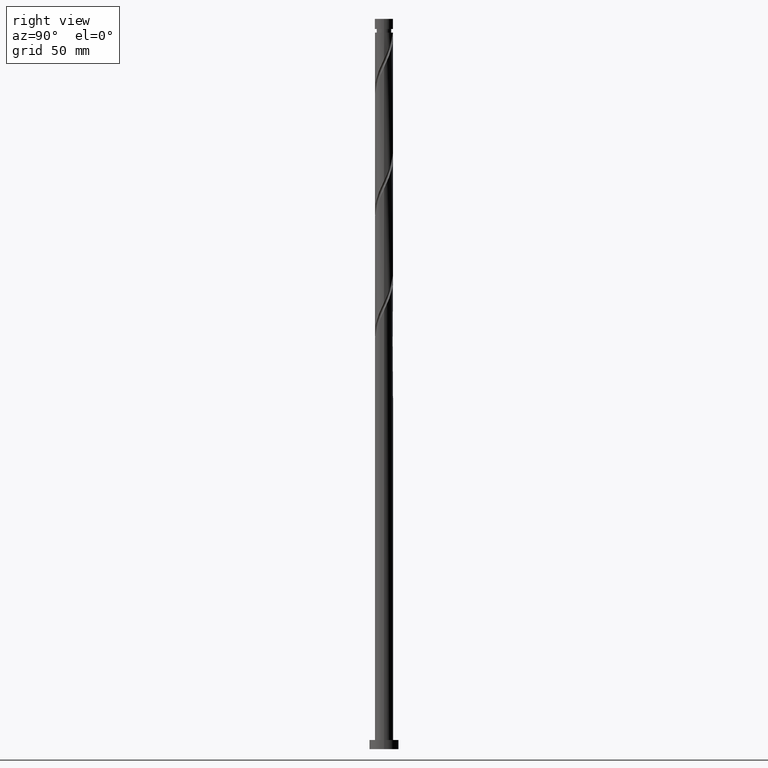
[diagram: clean part render]
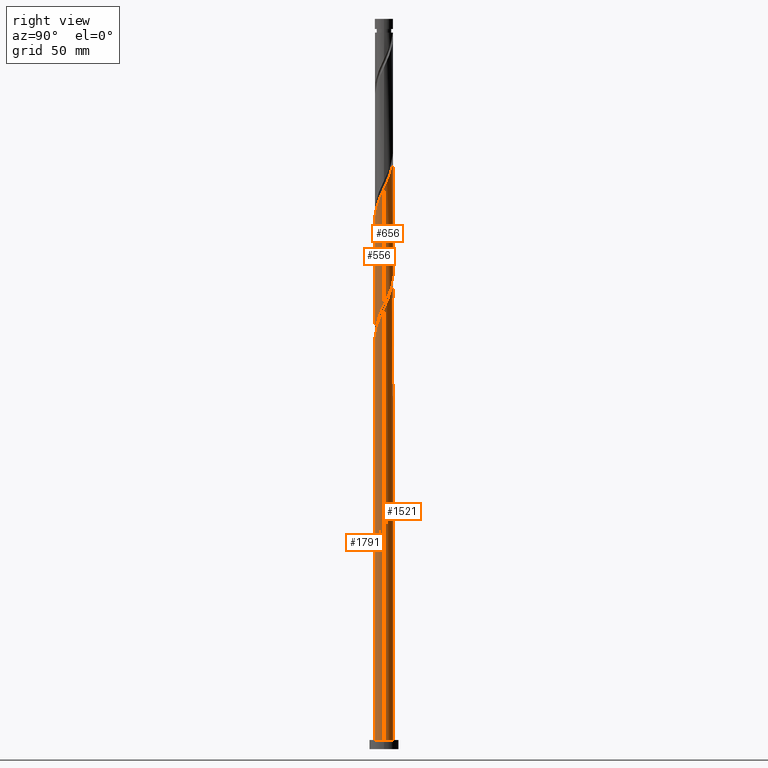
[diagram: same view with one multi-face feature highlighted, each face labeled with its STEP entity id]
A machine part, right view. The highlighted faces form ONE feature: a constant-radius fillet chain: 4 tangent blend faces with common blend radius 5 mm. The faces share edges in the B-rep.
Their STEP definitions:
[1] entity #1521 (Cylinder):
#57 = CARTESIAN_POINT ( 'NONE',  ( 2.075185990424289528, 4.549022214184805790, 252.4694968436236877 ) ) ;
#68 = CARTESIAN_POINT ( 'NONE',  ( -0.9949874371066234069, 4.900000000000004796, 259.1361635102904302 ) ) ;
#94 = CARTESIAN_POINT ( 'NONE',  ( -2.901975804651633517, 4.071674892377407318, 196.9139412880681732 ) ) ;
#103 = CARTESIAN_POINT ( 'NONE',  ( -5.000000000000006217, -5.486068459384110163E-15, 207.0107202667689421 ) ) ;
#116 = LINE ( 'NONE', #1640, #739 ) ;
#153 = VERTEX_POINT ( 'NONE', #1865 ) ;
#175 = DIRECTION ( 'NONE',  ( -1.000000000000000000, 0.000000000000000000, 0.000000000000000000 ) ) ;
#178 = CARTESIAN_POINT ( 'NONE',  ( 0.000000000000000000, 0.000000000000000000, 5.000000000000000000 ) ) ;
#191 = DIRECTION ( 'NONE',  ( 1.000000000000000000, 0.000000000000000000, 0.000000000000000000 ) ) ;
#206 = CARTESIAN_POINT ( 'NONE',  ( -1.992011859373145288, 4.586053723204385868, 261.3583857325126587 ) ) ;
#218 = CARTESIAN_POINT ( 'NONE',  ( -5.000000000000006217, 8.475751543517139737E-15, 273.6773869334355709 ) ) ;
#237 = CARTESIAN_POINT ( 'NONE',  ( 4.977161795075921269, 0.4773473218073948088, 241.3583857325126303 ) ) ;
#249 = CARTESIAN_POINT ( 'NONE',  ( 1.597064489395822795, 4.767133050742397238, 253.5806079547349157 ) ) ;
#253 = CARTESIAN_POINT ( 'NONE',  ( -4.907956893912952090, 1.090014511032752376, 204.6917190658460299 ) ) ;
#264 = CARTESIAN_POINT ( 'NONE',  ( 0.000000000000000000, 0.000000000000000000, 400.0000000000000000 ) ) ;
#265 = CARTESIAN_POINT ( 'NONE',  ( -4.574079500281185595, 2.086616695005838462, 202.4694968436237446 ) ) ;
#271 = LINE ( 'NONE', #903, #888 ) ;
#303 = CARTESIAN_POINT ( 'NONE',  ( 0.9949874371066257384, 4.900000000000001243, 192.4694968436237446 ) ) ;
#305 = VERTEX_POINT ( 'NONE', #1579 ) ;
#315 = EDGE_CURVE ( 'NONE', #305, #1188, #1964, .T. ) ;
#359 = CARTESIAN_POINT ( 'NONE',  ( -3.329926080465417382, 3.766664944670003123, 264.6917190658459731 ) ) ;
#370 = CARTESIAN_POINT ( 'NONE',  ( -4.907956893912952090, 1.090014511032752376, 271.3583857325127155 ) ) ;
#382 = CARTESIAN_POINT ( 'NONE',  ( 2.553307491452761369, 4.330911377627214343, 251.3583857325127440 ) ) ;
#385 = FACE_OUTER_BOUND ( 'NONE', #1338, .T. ) ;
#387 = ORIENTED_EDGE ( 'NONE', *, *, #315, .T. ) ;
#394 = DIRECTION ( 'NONE',  ( -0.000000000000000000, -0.000000000000000000, -1.000000000000000000 ) ) ;
#401 = EDGE_CURVE ( 'NONE', #813, #1217, #651, .T. ) ;
#405 = CARTESIAN_POINT ( 'NONE',  ( -3.329926080465417382, 3.766664944670003123, 198.0250523991793443 ) ) ;
#416 = CARTESIAN_POINT ( 'NONE',  ( -4.352708902590731732, 2.460472558129311871, 205.8028301769571442 ) ) ;
#469 = AXIS2_PLACEMENT_3D ( 'NONE', #264, #394, #1186 ) ;
#473 = EDGE_CURVE ( 'NONE', #1217, #1876, #271, .T. ) ;
#492 = DIRECTION ( 'NONE',  ( 0.000000000000000000, -0.000000000000000000, -1.000000000000000000 ) ) ;
#522 = CARTESIAN_POINT ( 'NONE',  ( -4.574079500281185595, 2.086616695005838462, 269.1361635102904302 ) ) ;
#534 = CARTESIAN_POINT ( 'NONE',  ( -5.000000000000004441, 0.2848686872321744556, 273.0717956240509920 ) ) ;
#538 = CARTESIAN_POINT ( 'NONE',  ( -2.075185990424285531, 4.549022214184804014, 199.1361635102904302 ) ) ;
#546 = CARTESIAN_POINT ( 'NONE',  ( -4.741018197097066178, 1.588315603019294642, 270.2472746214014592 ) ) ;
#571 = CARTESIAN_POINT ( 'NONE',  ( -4.926990569861231961, 1.000468106072394114, 209.1361635102904302 ) ) ;
#584 = CARTESIAN_POINT ( 'NONE',  ( -2.474025528837851429, 4.376684840084814176, 195.8028301769570305 ) ) ;
#599 = CARTESIAN_POINT ( 'NONE',  ( -0.5710221055866057105, 4.995008134297783009, 195.8028301769570305 ) ) ;
#623 = AXIS2_PLACEMENT_3D ( 'NONE', #1429, #492, #175 ) ;
#633 = ORIENTED_EDGE ( 'NONE', *, *, #1229, .T. ) ;
#635 = DIRECTION ( 'NONE',  ( -0.000000000000000000, -0.000000000000000000, -1.000000000000000000 ) ) ;
#651 =( BOUNDED_CURVE ( )  B_SPLINE_CURVE ( 2, ( #1312, #1024, #237, #861, #1771, #1922, #1761, #1488, #1609, #1792, #1172, #382, #57, #249, #850, #699, #1912, #1468, #68, #690, #206, #1322, #679, #359, #1621, #1932, #1003, #522, #546, #370, #1183, #534, #218 ),
 .UNSPECIFIED., .F., .T. ) 
 B_SPLINE_CURVE_WITH_KNOTS ( ( 3, 2, 2, 2, 2, 2, 2, 2, 2, 2, 2, 2, 2, 2, 2, 2, 3 ),
 ( 0.1795286012773114892, 0.1833333333333333481, 0.1916666666666666519, 0.1999999999999999556, 0.2083333333333333703, 0.2166666666666666741, 0.2249999999999999778, 0.2333333333333332815, 0.2416666666666666963, 0.2500000000000000000, 0.2583333333333333037, 0.2666666666666667185, 0.2750000000000000222, 0.2833333333333333259, 0.2916666666666666297, 0.3000000000000000444, 0.3045286012773112949 ),
 .UNSPECIFIED. ) 
 CURVE ( )  GEOMETRIC_REPRESENTATION_ITEM ( )  RATIONAL_B_SPLINE_CURVE ( ( 0.9066196499552303667, 0.9068171577856432020, 0.9090909090909421453, 0.9041108139711903080, 0.9090909090909421453, 0.9041108139711903080, 0.9090909090909421453, 0.9041108139711903080, 0.9090909090909421453, 0.9041108139711903080, 0.9090909090909421453, 0.9041108139711903080, 0.9090909090909421453, 0.9041108139711903080, 0.9090909090909421453, 0.9041108139711903080, 0.9090909090909421453, 0.9041108139711903080, 0.9090909090909421453, 0.9041108139711903080, 0.9090909090909421453, 0.9041108139711903080, 0.9090909090909421453, 0.9041108139711903080, 0.9090909090909421453, 0.9041108139711903080, 0.9090909090909421453, 0.9041108139711903080, 0.9090909090909421453, 0.9041108139711903080, 0.9090909090909421453, 0.9063845652764893623, 0.9066196499552303667 ) ) 
 REPRESENTATION_ITEM ( '' )  );
#663 = DIRECTION ( 'NONE',  ( 0.000000000000000000, 0.000000000000000000, 1.000000000000000000 ) ) ;
#679 = CARTESIAN_POINT ( 'NONE',  ( -2.901975804651633517, 4.071674892377407318, 263.5806079547348304 ) ) ;
#682 = CYLINDRICAL_SURFACE ( 'NONE', #469, 5.000000000000000888 ) ;
#690 = CARTESIAN_POINT ( 'NONE',  ( -1.509998189908440036, 4.795422606323959336, 260.2472746214015729 ) ) ;
#694 = CARTESIAN_POINT ( 'NONE',  ( -5.000000000000007994, 0.2848686872321631314, 206.4051289573843917 ) ) ;
#699 = CARTESIAN_POINT ( 'NONE',  ( 0.5710221055866081530, 4.995008134297789226, 255.8028301769572010 ) ) ;
#708 =( BOUNDED_CURVE ( )  B_SPLINE_CURVE ( 2, ( #1796, #1210, #1969, #571, #1197, #1816, #416, #885, #1039, #1515, #845, #1327, #538, #1167, #767, #599, #1223, #1854, #2003 ),
 .UNSPECIFIED., .F., .T. ) 
 B_SPLINE_CURVE_WITH_KNOTS ( ( 3, 2, 2, 2, 2, 2, 2, 2, 2, 3 ),
 ( 0.9295286012773117390, 0.9333333333333333481, 0.9416666666666666519, 0.9499999999999999556, 0.9583333333333333703, 0.9666666666666666741, 0.9749999999999999778, 0.9833333333333332815, 0.9916666666666666963, 1.000000000000000000 ),
 .UNSPECIFIED. ) 
 CURVE ( )  GEOMETRIC_REPRESENTATION_ITEM ( )  RATIONAL_B_SPLINE_CURVE ( ( 0.9066196499552259258, 0.9068171577856387611, 0.9090909090909374823, 0.9041108139711858671, 0.9090909090909374823, 0.9041108139711858671, 0.9090909090909374823, 0.9041108139711858671, 0.9090909090909374823, 0.9041108139711858671, 0.9090909090909374823, 0.9041108139711858671, 0.9090909090909374823, 0.9041108139711858671, 0.9090909090909374823, 0.9041108139711858671, 0.9090909090909374823, 0.9041108139711858671, 0.9090909090909374823 ) ) 
 REPRESENTATION_ITEM ( '' )  );
#716 = CARTESIAN_POINT ( 'NONE',  ( -3.685109482041955431, 3.379344330689689091, 199.1361635102904017 ) ) ;
#739 = VECTOR ( 'NONE', #1010, 1000.000000000000000 ) ;
#762 = EDGE_CURVE ( 'NONE', #813, #1526, #1340, .T. ) ;
#767 = CARTESIAN_POINT ( 'NONE',  ( -1.084043297491211311, 4.881070592520087459, 196.9139412880682016 ) ) ;
#786 = EDGE_CURVE ( 'NONE', #1574, #153, #116, .T. ) ;
#813 = VERTEX_POINT ( 'NONE', #1952 ) ;
#835 = ORIENTED_EDGE ( 'NONE', *, *, #786, .F. ) ;
#845 = CARTESIAN_POINT ( 'NONE',  ( -2.975633097728630272, 4.018159736459207210, 201.3583857325126587 ) ) ;
#850 = CARTESIAN_POINT ( 'NONE',  ( 1.084043297491217084, 4.881070592520091900, 254.6917190658459731 ) ) ;
#861 = CARTESIAN_POINT ( 'NONE',  ( 4.926990569861238178, 1.000468106072394114, 242.4694968436238014 ) ) ;
#869 = AXIS2_PLACEMENT_3D ( 'NONE', #178, #663, #191 ) ;
#885 = CARTESIAN_POINT ( 'NONE',  ( -4.094102815976368603, 2.917960698670212683, 204.6917190658459731 ) ) ;
#888 = VECTOR ( 'NONE', #635, 1000.000000000000000 ) ;
#903 = CARTESIAN_POINT ( 'NONE',  ( -5.000000000000000888, 0.000000000000000000, 400.0000000000000000 ) ) ;
#927 = CIRCLE ( 'NONE', #869, 5.000000000000000888 ) ;
#1003 = CARTESIAN_POINT ( 'NONE',  ( -4.307186191949837095, 2.539320205857606982, 268.0250523991792306 ) ) ;
#1006 = CARTESIAN_POINT ( 'NONE',  ( 5.000000000000000888, 6.123233995736766282E-16, 5.000000000000000000 ) ) ;
#1010 = DIRECTION ( 'NONE',  ( -0.000000000000000000, -0.000000000000000000, -1.000000000000000000 ) ) ;
#1024 = CARTESIAN_POINT ( 'NONE',  ( 5.000000000000007105, 0.2392199964337468621, 240.8526021256663228 ) ) ;
#1028 = CARTESIAN_POINT ( 'NONE',  ( -4.040292883618494812, 2.992023716709376835, 200.2472746214015160 ) ) ;
#1039 = CARTESIAN_POINT ( 'NONE',  ( -3.746030759990437886, 3.311684396980709710, 203.5806079547348588 ) ) ;
#1062 = VECTOR ( 'NONE', #1170, 1000.000000000000000 ) ;
#1167 = CARTESIAN_POINT ( 'NONE',  ( -1.597064489395817466, 4.767133050742391021, 198.0250523991792875 ) ) ;
#1170 = DIRECTION ( 'NONE',  ( -0.000000000000000000, -0.000000000000000000, -1.000000000000000000 ) ) ;
#1172 = CARTESIAN_POINT ( 'NONE',  ( 2.975633097728635157, 4.018159736459209874, 250.2472746214014592 ) ) ;
#1177 = CARTESIAN_POINT ( 'NONE',  ( -1.992011859373145288, 4.586053723204385868, 194.6917190658459447 ) ) ;
#1183 = CARTESIAN_POINT ( 'NONE',  ( -4.967644957101778225, 0.5678939867451746615, 272.4694968436236877 ) ) ;
#1186 = DIRECTION ( 'NONE',  ( -1.000000000000000000, 0.000000000000000000, 0.000000000000000000 ) ) ;
#1188 = VERTEX_POINT ( 'NONE', #303 ) ;
#1197 = CARTESIAN_POINT ( 'NONE',  ( -4.769152779533163411, 1.501726261830403919, 208.0250523991793443 ) ) ;
#1206 =( BOUNDED_CURVE ( )  B_SPLINE_CURVE ( 2, ( #1337, #1949, #1177, #584, #94, #405, #716, #1028, #1657, #265, #1359, #253, #1502, #694, #103 ),
 .UNSPECIFIED., .F., .T. ) 
 B_SPLINE_CURVE_WITH_KNOTS ( ( 3, 2, 2, 2, 2, 2, 2, 3 ),
 ( 0.000000000000000000, 0.008333333333333303727, 0.01666666666666671848, 0.02500000000000002220, 0.03333333333333332593, 0.04166666666666662966, 0.05000000000000004441, 0.05452860127731147533 ),
 .UNSPECIFIED. ) 
 CURVE ( )  GEOMETRIC_REPRESENTATION_ITEM ( )  RATIONAL_B_SPLINE_CURVE ( ( 0.9090909090909421453, 0.9041108139711903080, 0.9090909090909421453, 0.9041108139711903080, 0.9090909090909421453, 0.9041108139711903080, 0.9090909090909421453, 0.9041108139711903080, 0.9090909090909421453, 0.9041108139711903080, 0.9090909090909421453, 0.9041108139711903080, 0.9090909090909421453, 0.9063845652764892513, 0.9066196499552303667 ) ) 
 REPRESENTATION_ITEM ( '' )  );
#1210 = CARTESIAN_POINT ( 'NONE',  ( -4.999999999999999112, 0.2392199964337667073, 210.7530582282477951 ) ) ;
#1217 = VERTEX_POINT ( 'NONE', #1858 ) ;
#1223 = CARTESIAN_POINT ( 'NONE',  ( -0.04552271064089768310, 4.999792763986913968, 194.6917190658460015 ) ) ;
#1229 = EDGE_CURVE ( 'NONE', #1526, #153, #927, .T. ) ;
#1298 = ORIENTED_EDGE ( 'NONE', *, *, #473, .F. ) ;
#1312 = CARTESIAN_POINT ( 'NONE',  ( 5.000000000000006217, 3.856691178531608537E-15, 240.3440536001022849 ) ) ;
#1322 = CARTESIAN_POINT ( 'NONE',  ( -2.474025528837851429, 4.376684840084814176, 262.4694968436238014 ) ) ;
#1327 = CARTESIAN_POINT ( 'NONE',  ( -2.553307491452753375, 4.330911377627211678, 200.2472746214015160 ) ) ;
#1337 = CARTESIAN_POINT ( 'NONE',  ( -0.9949874371066236289, 4.900000000000007461, 192.4694968436237446 ) ) ;
#1338 = EDGE_LOOP ( 'NONE', ( #1818, #1757, #633, #835, #1369, #387, #1586, #1298 ) ) ;
#1340 = LINE ( 'NONE', #1650, #1062 ) ;
#1359 = CARTESIAN_POINT ( 'NONE',  ( -4.741018197097066178, 1.588315603019294642, 203.5806079547348304 ) ) ;
#1369 = ORIENTED_EDGE ( 'NONE', *, *, #1977, .F. ) ;
#1429 = CARTESIAN_POINT ( 'NONE',  ( 0.000000000000000000, 0.000000000000000000, 192.4694968436237730 ) ) ;
#1468 = CARTESIAN_POINT ( 'NONE',  ( -0.4799766843048056120, 5.004577393676055586, 258.0250523991792875 ) ) ;
#1488 = CARTESIAN_POINT ( 'NONE',  ( 4.094102815976375709, 2.917960698670214459, 246.9139412880681732 ) ) ;
#1502 = CARTESIAN_POINT ( 'NONE',  ( -4.967644957101778225, 0.5678939867451746615, 205.8028301769570305 ) ) ;
#1515 = CARTESIAN_POINT ( 'NONE',  ( -3.397958704004507613, 3.705408095291204962, 202.4694968436237446 ) ) ;
#1521 = ADVANCED_FACE ( 'NONE', ( #385 ), #682, .T. ) ;
#1526 = VERTEX_POINT ( 'NONE', #1006 ) ;
#1574 = VERTEX_POINT ( 'NONE', #1795 ) ;
#1579 = CARTESIAN_POINT ( 'NONE',  ( -0.9949874371066236289, 4.900000000000006573, 192.4694968436237446 ) ) ;
#1586 = ORIENTED_EDGE ( 'NONE', *, *, #2000, .F. ) ;
#1609 = CARTESIAN_POINT ( 'NONE',  ( 3.746030759990444992, 3.311684396980708822, 248.0250523991792591 ) ) ;
#1621 = CARTESIAN_POINT ( 'NONE',  ( -3.685109482041955431, 3.379344330689689091, 265.8028301769570589 ) ) ;
#1640 = CARTESIAN_POINT ( 'NONE',  ( -5.000000000000000888, 0.000000000000000000, 400.0000000000000000 ) ) ;
#1650 = CARTESIAN_POINT ( 'NONE',  ( 5.000000000000000888, 6.123233995736766282E-16, 400.0000000000000000 ) ) ;
#1657 = CARTESIAN_POINT ( 'NONE',  ( -4.307186191949837095, 2.539320205857606982, 201.3583857325126019 ) ) ;
#1757 = ORIENTED_EDGE ( 'NONE', *, *, #762, .T. ) ;
#1761 = CARTESIAN_POINT ( 'NONE',  ( 4.352708902590737949, 2.460472558129313647, 245.8028301769570305 ) ) ;
#1771 = CARTESIAN_POINT ( 'NONE',  ( 4.769152779533169628, 1.501726261830401254, 243.5806079547348304 ) ) ;
#1792 = CARTESIAN_POINT ( 'NONE',  ( 3.397958704004512942, 3.705408095291208070, 249.1361635102904017 ) ) ;
#1795 = CARTESIAN_POINT ( 'NONE',  ( -5.000000000000006217, -5.486068459384110163E-15, 207.0107202667689421 ) ) ;
#1796 = CARTESIAN_POINT ( 'NONE',  ( -5.000000000000000000, 2.152571820575791959E-14, 211.2616067538118614 ) ) ;
#1816 = CARTESIAN_POINT ( 'NONE',  ( -4.611314989205095749, 2.002984417588411503, 206.9139412880681732 ) ) ;
#1818 = ORIENTED_EDGE ( 'NONE', *, *, #401, .F. ) ;
#1854 = CARTESIAN_POINT ( 'NONE',  ( 0.4799766843048096643, 5.004577393676047592, 193.5806079547348588 ) ) ;
#1858 = CARTESIAN_POINT ( 'NONE',  ( -5.000000000000006217, 8.475751543517139737E-15, 273.6773869334355709 ) ) ;
#1865 = CARTESIAN_POINT ( 'NONE',  ( -5.000000000000000888, 0.000000000000000000, 5.000000000000000000 ) ) ;
#1876 = VERTEX_POINT ( 'NONE', #1982 ) ;
#1912 = CARTESIAN_POINT ( 'NONE',  ( 0.04552271064090124969, 4.999792763986920185, 256.9139412880682016 ) ) ;
#1922 = CARTESIAN_POINT ( 'NONE',  ( 4.611314989205103743, 2.002984417588409727, 244.6917190658460584 ) ) ;
#1932 = CARTESIAN_POINT ( 'NONE',  ( -4.040292883618494812, 2.992023716709376835, 266.9139412880682585 ) ) ;
#1949 = CARTESIAN_POINT ( 'NONE',  ( -1.509998189908440036, 4.795422606323959336, 193.5806079547348872 ) ) ;
#1952 = CARTESIAN_POINT ( 'NONE',  ( 5.000000000000006217, 3.856691178531608537E-15, 240.3440536001022849 ) ) ;
#1964 = CIRCLE ( 'NONE', #623, 5.000000000000000888 ) ;
#1969 = CARTESIAN_POINT ( 'NONE',  ( -4.977161795075916828, 0.4773473218073993607, 210.2472746214014876 ) ) ;
#1977 = EDGE_CURVE ( 'NONE', #305, #1574, #1206, .T. ) ;
#1982 = CARTESIAN_POINT ( 'NONE',  ( -5.000000000000000000, 2.152571820575791959E-14, 211.2616067538118614 ) ) ;
#2000 = EDGE_CURVE ( 'NONE', #1876, #1188, #708, .T. ) ;
#2003 = CARTESIAN_POINT ( 'NONE',  ( 0.9949874371066257384, 4.900000000000001243, 192.4694968436237446 ) ) ;
[2] entity #1791 (Cylinder):
#3 = AXIS2_PLACEMENT_3D ( 'NONE', #1827, #1688, #286 ) ;
#13 = EDGE_CURVE ( 'NONE', #153, #1526, #946, .T. ) ;
#93 = CARTESIAN_POINT ( 'NONE',  ( -4.926990569861238178, -1.000468106072394781, 209.1361635102905154 ) ) ;
#102 = CARTESIAN_POINT ( 'NONE',  ( 4.040292883618493924, -2.992023716709378167, 233.5806079547348872 ) ) ;
#112 = CARTESIAN_POINT ( 'NONE',  ( 5.000000000000006217, 3.856691178531608537E-15, 240.3440536001022849 ) ) ;
#116 = LINE ( 'NONE', #1640, #739 ) ;
#153 = VERTEX_POINT ( 'NONE', #1865 ) ;
#221 = CARTESIAN_POINT ( 'NONE',  ( -0.04552271064090062519, -4.999792763986920185, 223.5806079547348304 ) ) ;
#230 = CARTESIAN_POINT ( 'NONE',  ( -4.094102815976374821, -2.917960698670215347, 213.5806079547349441 ) ) ;
#252 = CARTESIAN_POINT ( 'NONE',  ( -5.000000000000006217, -0.2392199964337482221, 207.5192687923330084 ) ) ;
#286 = DIRECTION ( 'NONE',  ( 1.000000000000000000, 0.000000000000000000, 0.000000000000000000 ) ) ;
#346 = DIRECTION ( 'NONE',  ( -0.000000000000000000, -0.000000000000000000, -1.000000000000000000 ) ) ;
#373 = CARTESIAN_POINT ( 'NONE',  ( -2.975633097728635157, -4.018159736459210762, 216.9139412880681732 ) ) ;
#404 = CARTESIAN_POINT ( 'NONE',  ( 2.901975804651632185, -4.071674892377409094, 230.2472746214015160 ) ) ;
#415 = CARTESIAN_POINT ( 'NONE',  ( 4.574079500281184707, -2.086616695005839350, 235.8028301769571158 ) ) ;
#425 = CARTESIAN_POINT ( 'NONE',  ( 5.000000000000006217, -0.2848686872321634089, 239.7384622907177629 ) ) ;
#498 = CYLINDRICAL_SURFACE ( 'NONE', #961, 5.000000000000000888 ) ;
#549 = CARTESIAN_POINT ( 'NONE',  ( 1.992011859373143956, -4.586053723204385868, 228.0250523991792591 ) ) ;
#560 = CARTESIAN_POINT ( 'NONE',  ( 0.9949874371066240730, -4.900000000000004796, 225.8028301769570589 ) ) ;
#570 = CARTESIAN_POINT ( 'NONE',  ( -4.352708902590737949, -2.460472558129314091, 212.4694968436236877 ) ) ;
#695 = ORIENTED_EDGE ( 'NONE', *, *, #762, .F. ) ;
#702 = CARTESIAN_POINT ( 'NONE',  ( -1.597064489395822129, -4.767133050742397238, 220.2472746214015444 ) ) ;
#715 = CARTESIAN_POINT ( 'NONE',  ( -1.084043297491214863, -4.881070592520091900, 221.3583857325126303 ) ) ;
#739 = VECTOR ( 'NONE', #1010, 1000.000000000000000 ) ;
#762 = EDGE_CURVE ( 'NONE', #813, #1526, #1340, .T. ) ;
#786 = EDGE_CURVE ( 'NONE', #1574, #153, #116, .T. ) ;
#813 = VERTEX_POINT ( 'NONE', #1952 ) ;
#822 = DIRECTION ( 'NONE',  ( -1.000000000000000000, 0.000000000000000000, 0.000000000000000000 ) ) ;
#854 = CARTESIAN_POINT ( 'NONE',  ( -2.553307491452758260, -4.330911377627217007, 218.0250523991793159 ) ) ;
#875 = CARTESIAN_POINT ( 'NONE',  ( -4.769152779533167852, -1.501726261830402809, 210.2472746214015160 ) ) ;
#946 = CIRCLE ( 'NONE', #3, 5.000000000000000888 ) ;
#961 = AXIS2_PLACEMENT_3D ( 'NONE', #1746, #346, #822 ) ;
#1006 = CARTESIAN_POINT ( 'NONE',  ( 5.000000000000000888, 6.123233995736766282E-16, 5.000000000000000000 ) ) ;
#1010 = DIRECTION ( 'NONE',  ( -0.000000000000000000, -0.000000000000000000, -1.000000000000000000 ) ) ;
#1027 = CARTESIAN_POINT ( 'NONE',  ( 3.685109482041954543, -3.379344330689689091, 232.4694968436237161 ) ) ;
#1038 = CARTESIAN_POINT ( 'NONE',  ( 4.741018197097066178, -1.588315603019296640, 236.9139412880682016 ) ) ;
#1062 = VECTOR ( 'NONE', #1170, 1000.000000000000000 ) ;
#1067 =( BOUNDED_CURVE ( )  B_SPLINE_CURVE ( 2, ( #1358, #252, #1656, #93, #875, #1491, #570, #230, #1154, #1774, #373, #854, #1624, #702, #715, #1336, #221, #1948, #560, #1176, #549, #1805, #404, #1501, #1027, #102, #1968, #415, #1038, #1667, #1825, #425, #112 ),
 .UNSPECIFIED., .F., .T. ) 
 B_SPLINE_CURVE_WITH_KNOTS ( ( 3, 2, 2, 2, 2, 2, 2, 2, 2, 2, 2, 2, 2, 2, 2, 2, 3 ),
 ( 0.05452860127731147533, 0.05833333333333334814, 0.06666666666666665186, 0.07499999999999995559, 0.08333333333333337034, 0.09166666666666667407, 0.09999999999999997780, 0.1083333333333332815, 0.1166666666666666963, 0.1249999999999999861, 0.1333333333333333037, 0.1416666666666667185, 0.1500000000000000222, 0.1583333333333333259, 0.1666666666666666297, 0.1750000000000000444, 0.1795286012773114614 ),
 .UNSPECIFIED. ) 
 CURVE ( )  GEOMETRIC_REPRESENTATION_ITEM ( )  RATIONAL_B_SPLINE_CURVE ( ( 0.9066196499552303667, 0.9068171577856432020, 0.9090909090909421453, 0.9041108139711903080, 0.9090909090909421453, 0.9041108139711903080, 0.9090909090909421453, 0.9041108139711903080, 0.9090909090909421453, 0.9041108139711903080, 0.9090909090909421453, 0.9041108139711903080, 0.9090909090909421453, 0.9041108139711903080, 0.9090909090909421453, 0.9041108139711903080, 0.9090909090909421453, 0.9041108139711903080, 0.9090909090909421453, 0.9041108139711903080, 0.9090909090909421453, 0.9041108139711903080, 0.9090909090909421453, 0.9041108139711903080, 0.9090909090909421453, 0.9041108139711903080, 0.9090909090909421453, 0.9041108139711903080, 0.9090909090909421453, 0.9041108139711903080, 0.9090909090909421453, 0.9063845652764892513, 0.9066196499552303667 ) ) 
 REPRESENTATION_ITEM ( '' )  );
#1154 = CARTESIAN_POINT ( 'NONE',  ( -3.746030759990443215, -3.311684396980709710, 214.6917190658459447 ) ) ;
#1170 = DIRECTION ( 'NONE',  ( -0.000000000000000000, -0.000000000000000000, -1.000000000000000000 ) ) ;
#1176 = CARTESIAN_POINT ( 'NONE',  ( 1.509998189908438482, -4.795422606323962000, 226.9139412880682585 ) ) ;
#1336 = CARTESIAN_POINT ( 'NONE',  ( -0.5710221055866073758, -4.995008134297789226, 222.4694968436238014 ) ) ;
#1340 = LINE ( 'NONE', #1650, #1062 ) ;
#1358 = CARTESIAN_POINT ( 'NONE',  ( -5.000000000000006217, -5.486068459384110163E-15, 207.0107202667689421 ) ) ;
#1462 = FACE_OUTER_BOUND ( 'NONE', #2008, .T. ) ;
#1491 = CARTESIAN_POINT ( 'NONE',  ( -4.611314989205102854, -2.002984417588411947, 211.3583857325126587 ) ) ;
#1501 = CARTESIAN_POINT ( 'NONE',  ( 3.329926080465416049, -3.766664944670004012, 231.3583857325126587 ) ) ;
#1526 = VERTEX_POINT ( 'NONE', #1006 ) ;
#1574 = VERTEX_POINT ( 'NONE', #1795 ) ;
#1578 = EDGE_CURVE ( 'NONE', #1574, #813, #1067, .T. ) ;
#1624 = CARTESIAN_POINT ( 'NONE',  ( -2.075185990424288640, -4.549022214184805790, 219.1361635102904302 ) ) ;
#1640 = CARTESIAN_POINT ( 'NONE',  ( -5.000000000000000888, 0.000000000000000000, 400.0000000000000000 ) ) ;
#1650 = CARTESIAN_POINT ( 'NONE',  ( 5.000000000000000888, 6.123233995736766282E-16, 400.0000000000000000 ) ) ;
#1656 = CARTESIAN_POINT ( 'NONE',  ( -4.977161795075921269, -0.4773473218073975288, 208.0250523991792875 ) ) ;
#1667 = CARTESIAN_POINT ( 'NONE',  ( 4.907956893912952090, -1.090014511032755262, 238.0250523991794012 ) ) ;
#1688 = DIRECTION ( 'NONE',  ( 0.000000000000000000, 0.000000000000000000, 1.000000000000000000 ) ) ;
#1700 = ORIENTED_EDGE ( 'NONE', *, *, #1578, .F. ) ;
#1720 = ORIENTED_EDGE ( 'NONE', *, *, #13, .T. ) ;
#1746 = CARTESIAN_POINT ( 'NONE',  ( 0.000000000000000000, 0.000000000000000000, 400.0000000000000000 ) ) ;
#1774 = CARTESIAN_POINT ( 'NONE',  ( -3.397958704004512498, -3.705408095291208959, 215.8028301769570874 ) ) ;
#1776 = ORIENTED_EDGE ( 'NONE', *, *, #786, .T. ) ;
#1791 = ADVANCED_FACE ( 'NONE', ( #1462 ), #498, .T. ) ;
#1795 = CARTESIAN_POINT ( 'NONE',  ( -5.000000000000006217, -5.486068459384110163E-15, 207.0107202667689421 ) ) ;
#1805 = CARTESIAN_POINT ( 'NONE',  ( 2.474025528837850985, -4.376684840084815953, 229.1361635102904302 ) ) ;
#1825 = CARTESIAN_POINT ( 'NONE',  ( 4.967644957101778225, -0.5678939867451752166, 239.1361635102904017 ) ) ;
#1827 = CARTESIAN_POINT ( 'NONE',  ( 0.000000000000000000, 0.000000000000000000, 5.000000000000000000 ) ) ;
#1865 = CARTESIAN_POINT ( 'NONE',  ( -5.000000000000000888, 0.000000000000000000, 5.000000000000000000 ) ) ;
#1948 = CARTESIAN_POINT ( 'NONE',  ( 0.4799766843048083320, -5.004577393676053809, 224.6917190658459731 ) ) ;
#1952 = CARTESIAN_POINT ( 'NONE',  ( 5.000000000000006217, 3.856691178531608537E-15, 240.3440536001022849 ) ) ;
#1968 = CARTESIAN_POINT ( 'NONE',  ( 4.307186191949837095, -2.539320205857608315, 234.6917190658460015 ) ) ;
#2008 = EDGE_LOOP ( 'NONE', ( #695, #1700, #1776, #1720 ) ) ;
[3] entity #556 (Cylinder):
#9 = CYLINDRICAL_SURFACE ( 'NONE', #577, 5.000000000000000888 ) ;
#16 = CARTESIAN_POINT ( 'NONE',  ( -2.975633097728635157, -4.018159736459210762, 283.5806079547348872 ) ) ;
#37 = CARTESIAN_POINT ( 'NONE',  ( -1.084043297491214863, -4.881070592520091900, 288.0250523991792875 ) ) ;
#53 = CARTESIAN_POINT ( 'NONE',  ( 3.746030759990436110, -3.311684396980710599, 236.9139412880682585 ) ) ;
#63 = ORIENTED_EDGE ( 'NONE', *, *, #473, .T. ) ;
#82 = CARTESIAN_POINT ( 'NONE',  ( 4.307186191949837095, -2.539320205857608315, 301.3583857325126019 ) ) ;
#85 = CARTESIAN_POINT ( 'NONE',  ( -4.741018197097063513, -1.588315603019291089, 214.6917190658460015 ) ) ;
#162 = DIRECTION ( 'NONE',  ( -0.000000000000000000, -0.000000000000000000, -1.000000000000000000 ) ) ;
#168 = CARTESIAN_POINT ( 'NONE',  ( -4.611314989205102854, -2.002984417588411947, 278.0250523991792875 ) ) ;
#196 = CARTESIAN_POINT ( 'NONE',  ( 4.769152779533161635, -1.501726261830407028, 241.3583857325126587 ) ) ;
#211 = ORIENTED_EDGE ( 'NONE', *, *, #1495, .F. ) ;
#225 = CARTESIAN_POINT ( 'NONE',  ( 1.084043297491209756, -4.881070592520090123, 230.2472746214015444 ) ) ;
#235 = VECTOR ( 'NONE', #1140, 1000.000000000000000 ) ;
#268 = CARTESIAN_POINT ( 'NONE',  ( -4.574079500281179378, -2.086616695005834909, 215.8028301769570874 ) ) ;
#271 = LINE ( 'NONE', #903, #888 ) ;
#321 = CARTESIAN_POINT ( 'NONE',  ( -5.000000000000007994, -0.2392199964337368978, 274.1859354589996087 ) ) ;
#354 = CARTESIAN_POINT ( 'NONE',  ( -2.553307491452758260, -4.330911377627217007, 284.6917190658462005 ) ) ;
#379 = EDGE_CURVE ( 'NONE', #782, #1168, #1151, .T. ) ;
#419 = CARTESIAN_POINT ( 'NONE',  ( -4.040292883618490372, -2.992023716709371062, 218.0250523991792591 ) ) ;
#473 = EDGE_CURVE ( 'NONE', #1217, #1876, #271, .T. ) ;
#477 = FACE_OUTER_BOUND ( 'NONE', #1091, .T. ) ;
#504 =( BOUNDED_CURVE ( )  B_SPLINE_CURVE ( 2, ( #1258, #321, #1875, #1433, #654, #168, #1283, #643, #792, #1421, #16, #354, #1122, #1442, #37, #537, #693, #844, #1196, #1482, #1016, #1636, #1784, #1471, #884, #1646, #82, #1958, #1815, #526, #1514, #995, #724 ),
 .UNSPECIFIED., .F., .T. ) 
 B_SPLINE_CURVE_WITH_KNOTS ( ( 3, 2, 2, 2, 2, 2, 2, 2, 2, 2, 2, 2, 2, 2, 2, 2, 3 ),
 ( 0.3045286012773112949, 0.3083333333333333481, 0.3166666666666666519, 0.3249999999999999556, 0.3333333333333333703, 0.3416666666666666741, 0.3499999999999999778, 0.3583333333333332815, 0.3666666666666666963, 0.3750000000000000000, 0.3833333333333333037, 0.3916666666666667185, 0.4000000000000000222, 0.4083333333333333259, 0.4166666666666666297, 0.4250000000000000444, 0.4295286012773112949 ),
 .UNSPECIFIED. ) 
 CURVE ( )  GEOMETRIC_REPRESENTATION_ITEM ( )  RATIONAL_B_SPLINE_CURVE ( ( 0.9066196499552303667, 0.9068171577856430909, 0.9090909090909421453, 0.9041108139711903080, 0.9090909090909421453, 0.9041108139711903080, 0.9090909090909421453, 0.9041108139711903080, 0.9090909090909421453, 0.9041108139711903080, 0.9090909090909421453, 0.9041108139711903080, 0.9090909090909421453, 0.9041108139711903080, 0.9090909090909421453, 0.9041108139711903080, 0.9090909090909421453, 0.9041108139711903080, 0.9090909090909421453, 0.9041108139711903080, 0.9090909090909421453, 0.9041108139711903080, 0.9090909090909421453, 0.9041108139711903080, 0.9090909090909421453, 0.9041108139711903080, 0.9090909090909421453, 0.9041108139711903080, 0.9090909090909421453, 0.9041108139711903080, 0.9090909090909421453, 0.9063845652764893623, 0.9066196499552303667 ) ) 
 REPRESENTATION_ITEM ( '' )  );
#526 = CARTESIAN_POINT ( 'NONE',  ( 4.907956893912952090, -1.090014511032755262, 304.6917190658459162 ) ) ;
#537 = CARTESIAN_POINT ( 'NONE',  ( -0.5710221055866073758, -4.995008134297789226, 289.1361635102903733 ) ) ;
#553 = CARTESIAN_POINT ( 'NONE',  ( 2.075185990424285531, -4.549022214184804014, 232.4694968436237730 ) ) ;
#556 = ADVANCED_FACE ( 'NONE', ( #477 ), #9, .T. ) ;
#574 = CARTESIAN_POINT ( 'NONE',  ( -0.4799766843048117737, -5.004577393676047592, 226.9139412880682016 ) ) ;
#577 = AXIS2_PLACEMENT_3D ( 'NONE', #881, #162, #721 ) ;
#635 = DIRECTION ( 'NONE',  ( -0.000000000000000000, -0.000000000000000000, -1.000000000000000000 ) ) ;
#643 = CARTESIAN_POINT ( 'NONE',  ( -4.094102815976374821, -2.917960698670215347, 280.2472746214015160 ) ) ;
#654 = CARTESIAN_POINT ( 'NONE',  ( -4.769152779533167852, -1.501726261830402809, 276.9139412880682585 ) ) ;
#693 = CARTESIAN_POINT ( 'NONE',  ( -0.04552271064090062519, -4.999792763986920185, 290.2472746214014592 ) ) ;
#707 = CARTESIAN_POINT ( 'NONE',  ( -4.907956893912946761, -1.090014511032748823, 213.5806079547348872 ) ) ;
#719 = CARTESIAN_POINT ( 'NONE',  ( -4.307186191949835319, -2.539320205857602097, 216.9139412880682869 ) ) ;
#721 = DIRECTION ( 'NONE',  ( -1.000000000000000000, 0.000000000000000000, 0.000000000000000000 ) ) ;
#724 = CARTESIAN_POINT ( 'NONE',  ( 5.000000000000006217, 3.856691178531608537E-15, 307.0107202667689421 ) ) ;
#742 = EDGE_CURVE ( 'NONE', #1168, #1876, #1540, .T. ) ;
#782 = VERTEX_POINT ( 'NONE', #1213 ) ;
#792 = CARTESIAN_POINT ( 'NONE',  ( -3.746030759990443215, -3.311684396980709710, 281.3583857325126587 ) ) ;
#815 = CARTESIAN_POINT ( 'NONE',  ( 4.352708902590731732, -2.460472558129312315, 239.1361635102904302 ) ) ;
#844 = CARTESIAN_POINT ( 'NONE',  ( 0.4799766843048083320, -5.004577393676053809, 291.3583857325127155 ) ) ;
#848 = CARTESIAN_POINT ( 'NONE',  ( 2.553307491452752043, -4.330911377627212566, 233.5806079547348872 ) ) ;
#858 = CARTESIAN_POINT ( 'NONE',  ( 0.5710221055866048223, -4.995008134297783009, 229.1361635102904017 ) ) ;
#881 = CARTESIAN_POINT ( 'NONE',  ( 0.000000000000000000, 0.000000000000000000, 400.0000000000000000 ) ) ;
#884 = CARTESIAN_POINT ( 'NONE',  ( 3.685109482041954543, -3.379344330689689091, 299.1361635102904302 ) ) ;
#888 = VECTOR ( 'NONE', #635, 1000.000000000000000 ) ;
#889 = CARTESIAN_POINT ( 'NONE',  ( -5.000000000000002665, -0.2848686872321444796, 211.8671980631964686 ) ) ;
#903 = CARTESIAN_POINT ( 'NONE',  ( -5.000000000000000888, 0.000000000000000000, 400.0000000000000000 ) ) ;
#968 = CARTESIAN_POINT ( 'NONE',  ( 4.926990569861231961, -1.000468106072395003, 242.4694968436237161 ) ) ;
#978 = CARTESIAN_POINT ( 'NONE',  ( 4.094102815976365939, -2.917960698670215347, 238.0250523991792875 ) ) ;
#995 = CARTESIAN_POINT ( 'NONE',  ( 5.000000000000004441, -0.2848686872321755104, 306.4051289573843633 ) ) ;
#1013 = CARTESIAN_POINT ( 'NONE',  ( 5.000000000000000888, 6.123233995736766282E-16, 400.0000000000000000 ) ) ;
#1016 = CARTESIAN_POINT ( 'NONE',  ( 1.992011859373143956, -4.586053723204385868, 294.6917190658459731 ) ) ;
#1021 = CARTESIAN_POINT ( 'NONE',  ( -3.329926080465414273, -3.766664944669994686, 220.2472746214015160 ) ) ;
#1043 = CARTESIAN_POINT ( 'NONE',  ( 0.04552271064089660757, -4.999792763986913968, 228.0250523991793443 ) ) ;
#1091 = EDGE_LOOP ( 'NONE', ( #1286, #211, #63, #1328 ) ) ;
#1122 = CARTESIAN_POINT ( 'NONE',  ( -2.075185990424288640, -4.549022214184805790, 285.8028301769569453 ) ) ;
#1126 = CARTESIAN_POINT ( 'NONE',  ( 5.000000000000001776, -0.2392199964337411444, 244.0863915615812232 ) ) ;
#1139 = CARTESIAN_POINT ( 'NONE',  ( 4.977161795075916828, -0.4773473218074010815, 243.5806079547349157 ) ) ;
#1140 = DIRECTION ( 'NONE',  ( -0.000000000000000000, -0.000000000000000000, -1.000000000000000000 ) ) ;
#1151 = LINE ( 'NONE', #1013, #235 ) ;
#1168 = VERTEX_POINT ( 'NONE', #1386 ) ;
#1196 = CARTESIAN_POINT ( 'NONE',  ( 0.9949874371066240730, -4.900000000000004796, 292.4694968436237446 ) ) ;
#1201 = CARTESIAN_POINT ( 'NONE',  ( -1.992011859373145732, -4.586053723204382315, 223.5806079547348304 ) ) ;
#1213 = CARTESIAN_POINT ( 'NONE',  ( 5.000000000000006217, 3.856691178531608537E-15, 307.0107202667689421 ) ) ;
#1217 = VERTEX_POINT ( 'NONE', #1858 ) ;
#1258 = CARTESIAN_POINT ( 'NONE',  ( -5.000000000000006217, 8.475751543517139737E-15, 273.6773869334355709 ) ) ;
#1276 = CARTESIAN_POINT ( 'NONE',  ( 5.000000000000000888, 4.320092056572251041E-15, 244.5949400871452895 ) ) ;
#1283 = CARTESIAN_POINT ( 'NONE',  ( -4.352708902590737949, -2.460472558129314091, 279.1361635102903733 ) ) ;
#1286 = ORIENTED_EDGE ( 'NONE', *, *, #379, .F. ) ;
#1328 = ORIENTED_EDGE ( 'NONE', *, *, #742, .F. ) ;
#1350 = CARTESIAN_POINT ( 'NONE',  ( -4.967644957101774672, -0.5678939867451729961, 212.4694968436238014 ) ) ;
#1362 = CARTESIAN_POINT ( 'NONE',  ( -0.9949874371066248502, -4.900000000000001243, 225.8028301769571158 ) ) ;
#1386 = CARTESIAN_POINT ( 'NONE',  ( 5.000000000000000888, 4.320092056572251041E-15, 244.5949400871452895 ) ) ;
#1421 = CARTESIAN_POINT ( 'NONE',  ( -3.397958704004512498, -3.705408095291208959, 282.4694968436237446 ) ) ;
#1433 = CARTESIAN_POINT ( 'NONE',  ( -4.926990569861238178, -1.000468106072394781, 275.8028301769571158 ) ) ;
#1442 = CARTESIAN_POINT ( 'NONE',  ( -1.597064489395822129, -4.767133050742397238, 286.9139412880682585 ) ) ;
#1471 = CARTESIAN_POINT ( 'NONE',  ( 3.329926080465416049, -3.766664944670004012, 298.0250523991792875 ) ) ;
#1475 = CARTESIAN_POINT ( 'NONE',  ( -2.474025528837848320, -4.376684840084808847, 222.4694968436237446 ) ) ;
#1482 = CARTESIAN_POINT ( 'NONE',  ( 1.509998189908438482, -4.795422606323962000, 293.5806079547348872 ) ) ;
#1486 = CARTESIAN_POINT ( 'NONE',  ( 2.975633097728629828, -4.018159736459208986, 234.6917190658460299 ) ) ;
#1495 = EDGE_CURVE ( 'NONE', #1217, #782, #504, .T. ) ;
#1514 = CARTESIAN_POINT ( 'NONE',  ( 4.967644957101778225, -0.5678939867451752166, 305.8028301769570021 ) ) ;
#1519 = CARTESIAN_POINT ( 'NONE',  ( -5.000000000000000000, 2.152571820575791959E-14, 211.2616067538118614 ) ) ;
#1540 =( BOUNDED_CURVE ( )  B_SPLINE_CURVE ( 2, ( #1276, #1126, #1139, #968, #196, #1759, #815, #978, #53, #1920, #1486, #848, #553, #1972, #225, #858, #1043, #574, #1362, #1809, #1201, #1475, #1671, #1021, #1820, #419, #719, #268, #85, #707, #1350, #889, #1519 ),
 .UNSPECIFIED., .F., .T. ) 
 B_SPLINE_CURVE_WITH_KNOTS ( ( 3, 2, 2, 2, 2, 2, 2, 2, 2, 2, 2, 2, 2, 2, 2, 2, 3 ),
 ( 0.8045286012773112949, 0.8083333333333333481, 0.8166666666666666519, 0.8249999999999999556, 0.8333333333333333703, 0.8416666666666666741, 0.8499999999999999778, 0.8583333333333332815, 0.8666666666666666963, 0.8750000000000000000, 0.8833333333333333037, 0.8916666666666667185, 0.9000000000000000222, 0.9083333333333333259, 0.9166666666666666297, 0.9250000000000000444, 0.9295286012773117390 ),
 .UNSPECIFIED. ) 
 CURVE ( )  GEOMETRIC_REPRESENTATION_ITEM ( )  RATIONAL_B_SPLINE_CURVE ( ( 0.9066196499552259258, 0.9068171577856385390, 0.9090909090909374823, 0.9041108139711858671, 0.9090909090909374823, 0.9041108139711858671, 0.9090909090909374823, 0.9041108139711858671, 0.9090909090909374823, 0.9041108139711858671, 0.9090909090909374823, 0.9041108139711858671, 0.9090909090909374823, 0.9041108139711858671, 0.9090909090909374823, 0.9041108139711858671, 0.9090909090909374823, 0.9041108139711858671, 0.9090909090909374823, 0.9041108139711858671, 0.9090909090909374823, 0.9041108139711858671, 0.9090909090909374823, 0.9041108139711858671, 0.9090909090909374823, 0.9041108139711858671, 0.9090909090909374823, 0.9041108139711858671, 0.9090909090909374823, 0.9041108139711858671, 0.9090909090909374823, 0.9063845652764845884, 0.9066196499552259258 ) ) 
 REPRESENTATION_ITEM ( '' )  );
#1636 = CARTESIAN_POINT ( 'NONE',  ( 2.474025528837850985, -4.376684840084815953, 295.8028301769569453 ) ) ;
#1646 = CARTESIAN_POINT ( 'NONE',  ( 4.040292883618493924, -2.992023716709378167, 300.2472746214015729 ) ) ;
#1671 = CARTESIAN_POINT ( 'NONE',  ( -2.901975804651633073, -4.071674892377402877, 221.3583857325126587 ) ) ;
#1759 = CARTESIAN_POINT ( 'NONE',  ( 4.611314989205095749, -2.002984417588413280, 240.2472746214014592 ) ) ;
#1784 = CARTESIAN_POINT ( 'NONE',  ( 2.901975804651632185, -4.071674892377409094, 296.9139412880682585 ) ) ;
#1809 = CARTESIAN_POINT ( 'NONE',  ( -1.509998189908439814, -4.795422606323952230, 224.6917190658459731 ) ) ;
#1815 = CARTESIAN_POINT ( 'NONE',  ( 4.741018197097066178, -1.588315603019296640, 303.5806079547347736 ) ) ;
#1820 = CARTESIAN_POINT ( 'NONE',  ( -3.685109482041952766, -3.379344330689683318, 219.1361635102904302 ) ) ;
#1858 = CARTESIAN_POINT ( 'NONE',  ( -5.000000000000006217, 8.475751543517139737E-15, 273.6773869334355709 ) ) ;
#1875 = CARTESIAN_POINT ( 'NONE',  ( -4.977161795075921269, -0.4773473218073975288, 274.6917190658458594 ) ) ;
#1876 = VERTEX_POINT ( 'NONE', #1982 ) ;
#1920 = CARTESIAN_POINT ( 'NONE',  ( 3.397958704004506725, -3.705408095291204962, 235.8028301769570305 ) ) ;
#1958 = CARTESIAN_POINT ( 'NONE',  ( 4.574079500281184707, -2.086616695005839350, 302.4694968436238582 ) ) ;
#1972 = CARTESIAN_POINT ( 'NONE',  ( 1.597064489395816134, -4.767133050742391909, 231.3583857325126019 ) ) ;
#1982 = CARTESIAN_POINT ( 'NONE',  ( -5.000000000000000000, 2.152571820575791959E-14, 211.2616067538118614 ) ) ;
[4] entity #656 (Cylinder):
#33 = CYLINDRICAL_SURFACE ( 'NONE', #214, 5.000000000000000888 ) ;
#38 = CARTESIAN_POINT ( 'NONE',  ( 4.611314989205103743, 2.002984417588409727, 311.3583857325126587 ) ) ;
#45 = CARTESIAN_POINT ( 'NONE',  ( -2.553307491452753375, 4.330911377627211678, 266.9139412880682016 ) ) ;
#50 = CARTESIAN_POINT ( 'NONE',  ( 2.553307491452761369, 4.330911377627214343, 318.0250523991793443 ) ) ;
#79 = CARTESIAN_POINT ( 'NONE',  ( -4.977161795075916828, 0.4773473218073993607, 276.9139412880682016 ) ) ;
#99 = CARTESIAN_POINT ( 'NONE',  ( 2.901975804651633961, 4.071674892377400212, 254.6917190658460299 ) ) ;
#108 = EDGE_CURVE ( 'NONE', #1008, #856, #1873, .T. ) ;
#113 = CARTESIAN_POINT ( 'NONE',  ( 0.04552271064090124969, 4.999792763986920185, 323.5806079547348304 ) ) ;
#193 = CARTESIAN_POINT ( 'NONE',  ( 4.926990569861238178, 1.000468106072394114, 309.1361635102904870 ) ) ;
#201 = CARTESIAN_POINT ( 'NONE',  ( 3.397958704004512942, 3.705408095291208070, 315.8028301769571158 ) ) ;
#210 = CARTESIAN_POINT ( 'NONE',  ( 2.975633097728635157, 4.018159736459209874, 316.9139412880680879 ) ) ;
#214 = AXIS2_PLACEMENT_3D ( 'NONE', #675, #825, #512 ) ;
#227 = CARTESIAN_POINT ( 'NONE',  ( -5.000000000000000888, 7.578846618277270071E-15, 277.9282734204785470 ) ) ;
#231 = CARTESIAN_POINT ( 'NONE',  ( -5.000000000000005329, 5.246893812653466630E-15, 340.3440536001022565 ) ) ;
#235 = VECTOR ( 'NONE', #1140, 1000.000000000000000 ) ;
#241 = CARTESIAN_POINT ( 'NONE',  ( -1.992011859373145288, 4.586053723204385868, 328.0250523991794012 ) ) ;
#242 = ORIENTED_EDGE ( 'NONE', *, *, #460, .F. ) ;
#316 = CARTESIAN_POINT ( 'NONE',  ( 0.9949874371066255163, 4.900000000000001243, 259.1361635102904870 ) ) ;
#379 = EDGE_CURVE ( 'NONE', #782, #1168, #1151, .T. ) ;
#386 = CARTESIAN_POINT ( 'NONE',  ( -2.474025528837851429, 4.376684840084814176, 329.1361635102904302 ) ) ;
#391 = CARTESIAN_POINT ( 'NONE',  ( -2.075185990424285531, 4.549022214184804014, 265.8028301769571726 ) ) ;
#395 = CARTESIAN_POINT ( 'NONE',  ( -0.4799766843048056120, 5.004577393676055586, 324.6917190658459731 ) ) ;
#400 = CARTESIAN_POINT ( 'NONE',  ( -3.397958704004507613, 3.705408095291204962, 269.1361635102903165 ) ) ;
#426 = CARTESIAN_POINT ( 'NONE',  ( -4.741018197097066178, 1.588315603019294642, 336.9139412880682016 ) ) ;
#460 = EDGE_CURVE ( 'NONE', #856, #1168, #1760, .T. ) ;
#493 =( BOUNDED_CURVE ( )  B_SPLINE_CURVE ( 2, ( #793, #1273, #1111, #193, #811, #38, #1297, #975, #1766, #201, #210, #50, #671, #1307, #1637, #1785, #113, #395, #1959, #1018, #241, #386, #1826, #561, #1647, #876, #734, #1472, #426, #1936, #1668, #1187, #231 ),
 .UNSPECIFIED., .F., .T. ) 
 B_SPLINE_CURVE_WITH_KNOTS ( ( 3, 2, 2, 2, 2, 2, 2, 2, 2, 2, 2, 2, 2, 2, 2, 2, 3 ),
 ( 0.4295286012773112949, 0.4333333333333333481, 0.4416666666666666519, 0.4499999999999999556, 0.4583333333333333703, 0.4666666666666666741, 0.4749999999999999778, 0.4833333333333332815, 0.4916666666666666963, 0.5000000000000000000, 0.5083333333333333037, 0.5166666666666666075, 0.5250000000000000222, 0.5333333333333333259, 0.5416666666666667407, 0.5500000000000000444, 0.5545286012773114059 ),
 .UNSPECIFIED. ) 
 CURVE ( )  GEOMETRIC_REPRESENTATION_ITEM ( )  RATIONAL_B_SPLINE_CURVE ( ( 0.9066196499552303667, 0.9068171577856430909, 0.9090909090909421453, 0.9041108139711903080, 0.9090909090909421453, 0.9041108139711903080, 0.9090909090909421453, 0.9041108139711903080, 0.9090909090909421453, 0.9041108139711903080, 0.9090909090909421453, 0.9041108139711903080, 0.9090909090909421453, 0.9041108139711903080, 0.9090909090909421453, 0.9041108139711903080, 0.9090909090909421453, 0.9041108139711903080, 0.9090909090909421453, 0.9041108139711903080, 0.9090909090909421453, 0.9041108139711903080, 0.9090909090909421453, 0.9041108139711903080, 0.9090909090909421453, 0.9041108139711903080, 0.9090909090909421453, 0.9041108139711903080, 0.9090909090909421453, 0.9041108139711903080, 0.9090909090909421453, 0.9063845652764892513, 0.9066196499552303667 ) ) 
 REPRESENTATION_ITEM ( '' )  );
#512 = DIRECTION ( 'NONE',  ( -1.000000000000000000, 0.000000000000000000, 0.000000000000000000 ) ) ;
#513 = CARTESIAN_POINT ( 'NONE',  ( -0.5710221055866057105, 4.995008134297783009, 262.4694968436237446 ) ) ;
#557 = CARTESIAN_POINT ( 'NONE',  ( -4.094102815976368603, 2.917960698670212683, 271.3583857325126019 ) ) ;
#561 = CARTESIAN_POINT ( 'NONE',  ( -3.329926080465417382, 3.766664944670003123, 331.3583857325127155 ) ) ;
#566 = CARTESIAN_POINT ( 'NONE',  ( 4.999999999999999112, 0.2848686872321704033, 245.2005313965298683 ) ) ;
#579 = CARTESIAN_POINT ( 'NONE',  ( 1.992011859373146621, 4.586053723204382315, 256.9139412880682016 ) ) ;
#656 = ADVANCED_FACE ( 'NONE', ( #1576 ), #33, .T. ) ;
#667 = CARTESIAN_POINT ( 'NONE',  ( -1.084043297491211311, 4.881070592520087459, 263.5806079547348872 ) ) ;
#671 = CARTESIAN_POINT ( 'NONE',  ( 2.075185990424289528, 4.549022214184805790, 319.1361635102903165 ) ) ;
#675 = CARTESIAN_POINT ( 'NONE',  ( 0.000000000000000000, 0.000000000000000000, 400.0000000000000000 ) ) ;
#712 = CARTESIAN_POINT ( 'NONE',  ( -4.926990569861231961, 1.000468106072394114, 275.8028301769570021 ) ) ;
#734 = CARTESIAN_POINT ( 'NONE',  ( -4.307186191949837095, 2.539320205857606982, 334.6917190658458594 ) ) ;
#782 = VERTEX_POINT ( 'NONE', #1213 ) ;
#783 = CARTESIAN_POINT ( 'NONE',  ( 4.574079500281179378, 2.086616695005834021, 249.1361635102903733 ) ) ;
#793 = CARTESIAN_POINT ( 'NONE',  ( 5.000000000000006217, 3.856691178531608537E-15, 307.0107202667689421 ) ) ;
#803 = ORIENTED_EDGE ( 'NONE', *, *, #379, .T. ) ;
#811 = CARTESIAN_POINT ( 'NONE',  ( 4.769152779533169628, 1.501726261830401254, 310.2472746214015160 ) ) ;
#825 = DIRECTION ( 'NONE',  ( -0.000000000000000000, -0.000000000000000000, -1.000000000000000000 ) ) ;
#856 = VERTEX_POINT ( 'NONE', #1799 ) ;
#872 = CARTESIAN_POINT ( 'NONE',  ( -2.975633097728630272, 4.018159736459207210, 268.0250523991793443 ) ) ;
#876 = CARTESIAN_POINT ( 'NONE',  ( -4.040292883618494812, 2.992023716709376835, 333.5806079547349441 ) ) ;
#935 = CARTESIAN_POINT ( 'NONE',  ( 2.474025528837849652, 4.376684840084808847, 255.8028301769570874 ) ) ;
#943 = EDGE_LOOP ( 'NONE', ( #1898, #803, #242, #1950 ) ) ;
#952 = CARTESIAN_POINT ( 'NONE',  ( -5.000000000000000888, 0.000000000000000000, 400.0000000000000000 ) ) ;
#975 = CARTESIAN_POINT ( 'NONE',  ( 4.094102815976375709, 2.917960698670214459, 313.5806079547349441 ) ) ;
#980 = CARTESIAN_POINT ( 'NONE',  ( -0.04552271064089768310, 4.999792763986913968, 261.3583857325127155 ) ) ;
#1008 = VERTEX_POINT ( 'NONE', #1404 ) ;
#1013 = CARTESIAN_POINT ( 'NONE',  ( 5.000000000000000888, 6.123233995736766282E-16, 400.0000000000000000 ) ) ;
#1018 = CARTESIAN_POINT ( 'NONE',  ( -1.509998189908440036, 4.795422606323959336, 326.9139412880681448 ) ) ;
#1105 = CARTESIAN_POINT ( 'NONE',  ( 3.329926080465414717, 3.766664944669994686, 253.5806079547348020 ) ) ;
#1111 = CARTESIAN_POINT ( 'NONE',  ( 4.977161795075921269, 0.4773473218073948088, 308.0250523991793443 ) ) ;
#1140 = DIRECTION ( 'NONE',  ( -0.000000000000000000, -0.000000000000000000, -1.000000000000000000 ) ) ;
#1151 = LINE ( 'NONE', #1013, #235 ) ;
#1168 = VERTEX_POINT ( 'NONE', #1386 ) ;
#1187 = CARTESIAN_POINT ( 'NONE',  ( -5.000000000000006217, 0.2848686872321675723, 339.7384622907177913 ) ) ;
#1192 = CARTESIAN_POINT ( 'NONE',  ( 4.967644957101774672, 0.5678939867451723300, 245.8028301769571158 ) ) ;
#1205 = CARTESIAN_POINT ( 'NONE',  ( 4.907956893912948537, 1.090014511032746825, 246.9139412880681732 ) ) ;
#1213 = CARTESIAN_POINT ( 'NONE',  ( 5.000000000000006217, 3.856691178531608537E-15, 307.0107202667689421 ) ) ;
#1214 = CARTESIAN_POINT ( 'NONE',  ( 0.4799766843048096643, 5.004577393676047592, 260.2472746214014592 ) ) ;
#1249 = CARTESIAN_POINT ( 'NONE',  ( 4.741018197097064402, 1.588315603019288647, 248.0250523991793727 ) ) ;
#1273 = CARTESIAN_POINT ( 'NONE',  ( 5.000000000000008882, 0.2392199964337347051, 307.5192687923330368 ) ) ;
#1297 = CARTESIAN_POINT ( 'NONE',  ( 4.352708902590737949, 2.460472558129313647, 312.4694968436238014 ) ) ;
#1301 = CARTESIAN_POINT ( 'NONE',  ( -1.597064489395817466, 4.767133050742391021, 264.6917190658459162 ) ) ;
#1307 = CARTESIAN_POINT ( 'NONE',  ( 1.597064489395822795, 4.767133050742397238, 320.2472746214015729 ) ) ;
#1332 = CARTESIAN_POINT ( 'NONE',  ( -4.769152779533163411, 1.501726261830403919, 274.6917190658459731 ) ) ;
#1386 = CARTESIAN_POINT ( 'NONE',  ( 5.000000000000000888, 4.320092056572251041E-15, 244.5949400871452895 ) ) ;
#1390 = DIRECTION ( 'NONE',  ( -0.000000000000000000, -0.000000000000000000, -1.000000000000000000 ) ) ;
#1404 = CARTESIAN_POINT ( 'NONE',  ( -5.000000000000005329, 5.246893812653466630E-15, 340.3440536001022565 ) ) ;
#1414 = CARTESIAN_POINT ( 'NONE',  ( 5.000000000000000888, 4.320092056572251041E-15, 244.5949400871452895 ) ) ;
#1472 = CARTESIAN_POINT ( 'NONE',  ( -4.574079500281185595, 2.086616695005838462, 335.8028301769571726 ) ) ;
#1479 = CARTESIAN_POINT ( 'NONE',  ( -5.000000000000000888, 0.2392199964337528018, 277.4197248949145092 ) ) ;
#1498 = CARTESIAN_POINT ( 'NONE',  ( 1.509998189908443145, 4.795422606323951342, 258.0250523991792306 ) ) ;
#1567 = CARTESIAN_POINT ( 'NONE',  ( 4.307186191949835319, 2.539320205857601653, 250.2472746214015160 ) ) ;
#1576 = FACE_OUTER_BOUND ( 'NONE', #943, .T. ) ;
#1637 = CARTESIAN_POINT ( 'NONE',  ( 1.084043297491217084, 4.881070592520091900, 321.3583857325126019 ) ) ;
#1647 = CARTESIAN_POINT ( 'NONE',  ( -3.685109482041955431, 3.379344330689689091, 332.4694968436236309 ) ) ;
#1668 = CARTESIAN_POINT ( 'NONE',  ( -4.967644957101778225, 0.5678939867451746615, 339.1361635102904302 ) ) ;
#1760 =( BOUNDED_CURVE ( )  B_SPLINE_CURVE ( 2, ( #227, #1479, #79, #712, #1332, #1955, #1944, #557, #1802, #400, #872, #45, #391, #1301, #667, #513, #980, #1214, #316, #1498, #579, #935, #99, #1105, #1832, #2015, #1567, #783, #1249, #1205, #1192, #566, #1414 ),
 .UNSPECIFIED., .F., .T. ) 
 B_SPLINE_CURVE_WITH_KNOTS ( ( 3, 2, 2, 2, 2, 2, 2, 2, 2, 2, 2, 2, 2, 2, 2, 2, 3 ),
 ( 0.6795286012773115170, 0.6833333333333333481, 0.6916666666666666519, 0.6999999999999999556, 0.7083333333333333703, 0.7166666666666666741, 0.7249999999999999778, 0.7333333333333332815, 0.7416666666666666963, 0.7500000000000000000, 0.7583333333333333037, 0.7666666666666667185, 0.7750000000000000222, 0.7833333333333333259, 0.7916666666666666297, 0.8000000000000000444, 0.8045286012773112949 ),
 .UNSPECIFIED. ) 
 CURVE ( )  GEOMETRIC_REPRESENTATION_ITEM ( )  RATIONAL_B_SPLINE_CURVE ( ( 0.9066196499552259258, 0.9068171577856386500, 0.9090909090909374823, 0.9041108139711858671, 0.9090909090909374823, 0.9041108139711858671, 0.9090909090909374823, 0.9041108139711858671, 0.9090909090909374823, 0.9041108139711858671, 0.9090909090909374823, 0.9041108139711858671, 0.9090909090909374823, 0.9041108139711858671, 0.9090909090909374823, 0.9041108139711858671, 0.9090909090909374823, 0.9041108139711858671, 0.9090909090909374823, 0.9041108139711858671, 0.9090909090909374823, 0.9041108139711858671, 0.9090909090909374823, 0.9041108139711858671, 0.9090909090909374823, 0.9041108139711858671, 0.9090909090909374823, 0.9041108139711858671, 0.9090909090909374823, 0.9041108139711858671, 0.9090909090909374823, 0.9063845652764848104, 0.9066196499552259258 ) ) 
 REPRESENTATION_ITEM ( '' )  );
#1766 = CARTESIAN_POINT ( 'NONE',  ( 3.746030759990444992, 3.311684396980708822, 314.6917190658458026 ) ) ;
#1785 = CARTESIAN_POINT ( 'NONE',  ( 0.5710221055866081530, 4.995008134297789226, 322.4694968436238582 ) ) ;
#1799 = CARTESIAN_POINT ( 'NONE',  ( -5.000000000000000888, 7.578846618277270071E-15, 277.9282734204785470 ) ) ;
#1801 = VECTOR ( 'NONE', #1390, 1000.000000000000000 ) ;
#1802 = CARTESIAN_POINT ( 'NONE',  ( -3.746030759990437886, 3.311684396980709710, 270.2472746214015160 ) ) ;
#1826 = CARTESIAN_POINT ( 'NONE',  ( -2.901975804651633517, 4.071674892377407318, 330.2472746214013455 ) ) ;
#1829 = EDGE_CURVE ( 'NONE', #782, #1008, #493, .T. ) ;
#1832 = CARTESIAN_POINT ( 'NONE',  ( 3.685109482041953211, 3.379344330689683318, 252.4694968436237446 ) ) ;
#1873 = LINE ( 'NONE', #952, #1801 ) ;
#1898 = ORIENTED_EDGE ( 'NONE', *, *, #1829, .F. ) ;
#1936 = CARTESIAN_POINT ( 'NONE',  ( -4.907956893912952090, 1.090014511032752376, 338.0250523991794012 ) ) ;
#1944 = CARTESIAN_POINT ( 'NONE',  ( -4.352708902590731732, 2.460472558129311871, 272.4694968436237446 ) ) ;
#1950 = ORIENTED_EDGE ( 'NONE', *, *, #108, .F. ) ;
#1955 = CARTESIAN_POINT ( 'NONE',  ( -4.611314989205095749, 2.002984417588411503, 273.5806079547348304 ) ) ;
#1959 = CARTESIAN_POINT ( 'NONE',  ( -0.9949874371066234069, 4.900000000000004796, 325.8028301769571726 ) ) ;
#2015 = CARTESIAN_POINT ( 'NONE',  ( 4.040292883618492148, 2.992023716709367953, 251.3583857325126303 ) ) ;